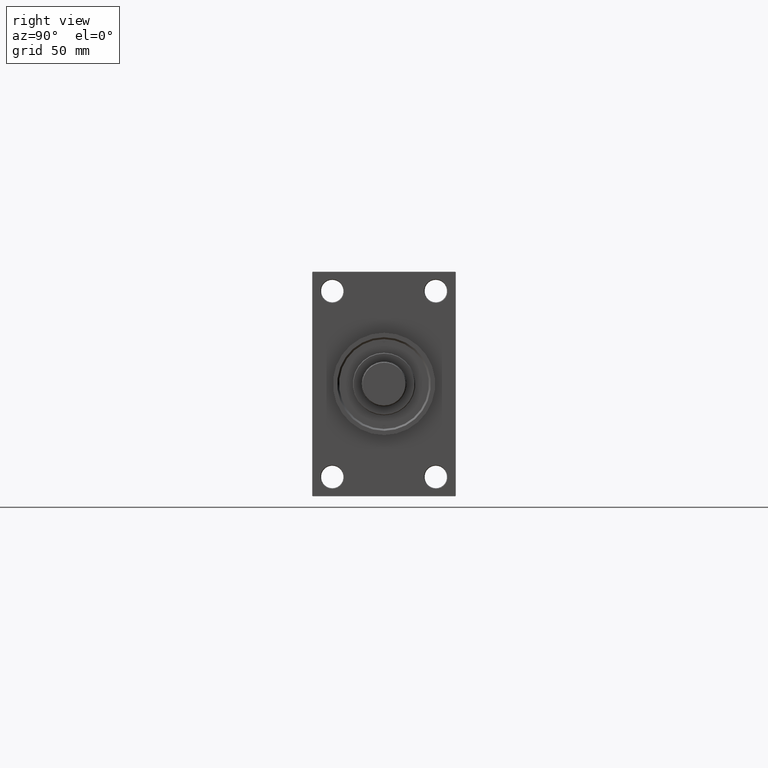
[diagram: clean part render]
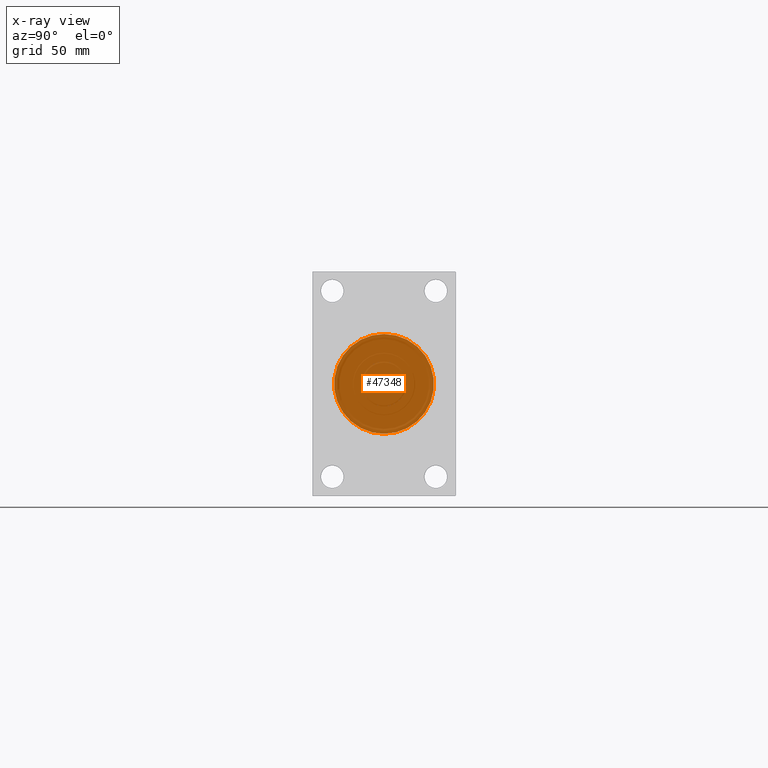
[diagram: x-ray — body ghosted, one internal face saturated and labeled with its STEP entity id]
A machine part, right view, then the same camera in x-ray: the body is ghosted and one INTERNAL B-rep face — a face not visible from any outside direction — is saturated and labeled: STEP entity #47348.
In plain terms, the highlighted planar face has unit normal (-1, 0, 0).
Its self-contained STEP definition (entity closure, byte-faithful):
#600 = CARTESIAN_POINT ( 'NONE',  ( 44.00000000000000000, -2.602085213965210642E-15, 40.00000000000000000 ) ) ;
#1574 = EDGE_CURVE ( 'NONE', #8592, #46541, #1962, .T. ) ;
#1901 = ORIENTED_EDGE ( 'NONE', *, *, #30501, .T. ) ;
#1962 = CIRCLE ( 'NONE', #48005, 40.00000000000000000 ) ;
#2718 = CIRCLE ( 'NONE', #30013, 40.00000000000000000 ) ;
#2908 = AXIS2_PLACEMENT_3D ( 'NONE', #9223, #24827, #20453 ) ;
#5611 = AXIS2_PLACEMENT_3D ( 'NONE', #5631, #9309, #13439 ) ;
#5631 = CARTESIAN_POINT ( 'NONE',  ( 44.00000000000001421, 0.000000000000000000, 0.000000000000000000 ) ) ;
#6554 = CARTESIAN_POINT ( 'NONE',  ( 44.00000000000000000, -2.602085213965210642E-15, 0.000000000000000000 ) ) ;
#6945 = CARTESIAN_POINT ( 'NONE',  ( 44.00000000000000000, -2.602085213965210642E-15, 0.000000000000000000 ) ) ;
#7320 = CARTESIAN_POINT ( 'NONE',  ( 44.00000000000001421, 4.286263797015736595E-16, -3.500000000000000000 ) ) ;
#7936 = FACE_BOUND ( 'NONE', #46661, .T. ) ;
#8592 = VERTEX_POINT ( 'NONE', #13296 ) ;
#9223 = CARTESIAN_POINT ( 'NONE',  ( 44.00000000000001421, 0.000000000000000000, 0.000000000000000000 ) ) ;
#9309 = DIRECTION ( 'NONE',  ( -1.000000000000000000, 0.000000000000000000, -0.000000000000000000 ) ) ;
#10849 = DIRECTION ( 'NONE',  ( 0.000000000000000000, 0.000000000000000000, -1.000000000000000000 ) ) ;
#13296 = CARTESIAN_POINT ( 'NONE',  ( 44.00000000000000000, 2.296501982624201990E-15, -40.00000000000000000 ) ) ;
#13439 = DIRECTION ( 'NONE',  ( 0.000000000000000000, 0.000000000000000000, 1.000000000000000000 ) ) ;
#13943 = VERTEX_POINT ( 'NONE', #44680 ) ;
#14680 = EDGE_CURVE ( 'NONE', #25398, #13943, #44638, .T. ) ;
#15769 = DIRECTION ( 'NONE',  ( -1.000000000000000000, 0.000000000000000000, -0.000000000000000000 ) ) ;
#16084 = ORIENTED_EDGE ( 'NONE', *, *, #43780, .T. ) ;
#18426 = AXIS2_PLACEMENT_3D ( 'NONE', #23333, #15769, #27251 ) ;
#20453 = DIRECTION ( 'NONE',  ( 0.000000000000000000, 0.000000000000000000, 1.000000000000000000 ) ) ;
#21132 = DIRECTION ( 'NONE',  ( 1.000000000000000000, 0.000000000000000000, 0.000000000000000000 ) ) ;
#21204 = ORIENTED_EDGE ( 'NONE', *, *, #1574, .T. ) ;
#23333 = CARTESIAN_POINT ( 'NONE',  ( 44.00000000000000000, 0.000000000000000000, 0.000000000000000000 ) ) ;
#23582 = PLANE ( 'NONE',  #18426 ) ;
#24659 = DIRECTION ( 'NONE',  ( 1.000000000000000000, 0.000000000000000000, 0.000000000000000000 ) ) ;
#24827 = DIRECTION ( 'NONE',  ( -1.000000000000000000, 0.000000000000000000, -0.000000000000000000 ) ) ;
#25398 = VERTEX_POINT ( 'NONE', #7320 ) ;
#25805 = ORIENTED_EDGE ( 'NONE', *, *, #14680, .T. ) ;
#27251 = DIRECTION ( 'NONE',  ( -0.000000000000000000, 0.000000000000000000, 1.000000000000000000 ) ) ;
#30013 = AXIS2_PLACEMENT_3D ( 'NONE', #6945, #21132, #10849 ) ;
#30501 = EDGE_CURVE ( 'NONE', #13943, #25398, #41942, .T. ) ;
#32933 = DIRECTION ( 'NONE',  ( 0.000000000000000000, 0.000000000000000000, -1.000000000000000000 ) ) ;
#33583 = EDGE_LOOP ( 'NONE', ( #16084, #21204 ) ) ;
#41942 = CIRCLE ( 'NONE', #2908, 3.500000000000000000 ) ;
#43780 = EDGE_CURVE ( 'NONE', #46541, #8592, #2718, .T. ) ;
#44638 = CIRCLE ( 'NONE', #5611, 3.500000000000000000 ) ;
#44680 = CARTESIAN_POINT ( 'NONE',  ( 44.00000000000001421, 0.000000000000000000, 3.500000000000000000 ) ) ;
#45848 = FACE_OUTER_BOUND ( 'NONE', #33583, .T. ) ;
#46541 = VERTEX_POINT ( 'NONE', #600 ) ;
#46661 = EDGE_LOOP ( 'NONE', ( #1901, #25805 ) ) ;
#47348 = ADVANCED_FACE ( 'NONE', ( #45848, #7936 ), #23582, .F. ) ;
#48005 = AXIS2_PLACEMENT_3D ( 'NONE', #6554, #24659, #32933 ) ;